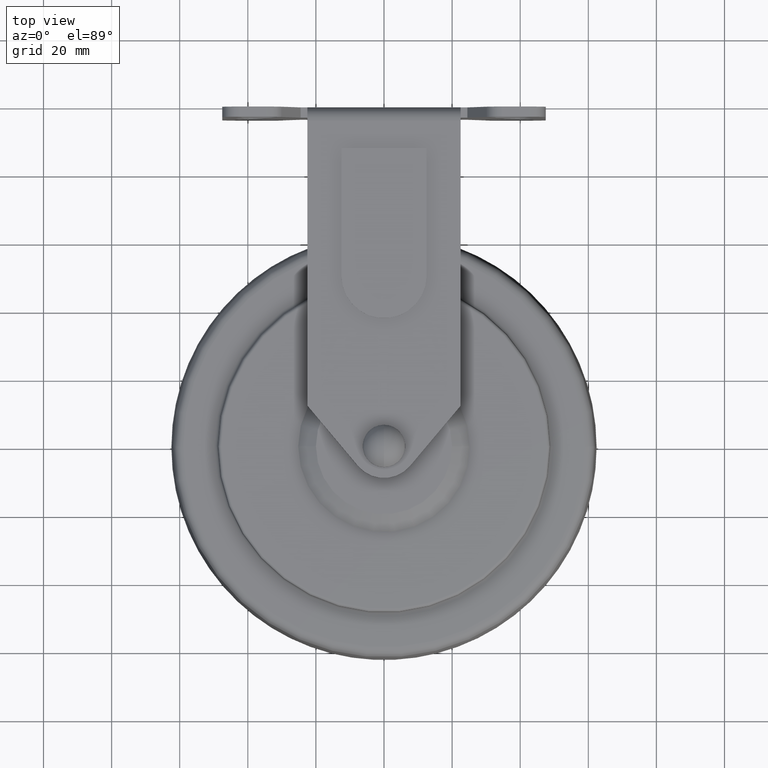
[diagram: clean part render]
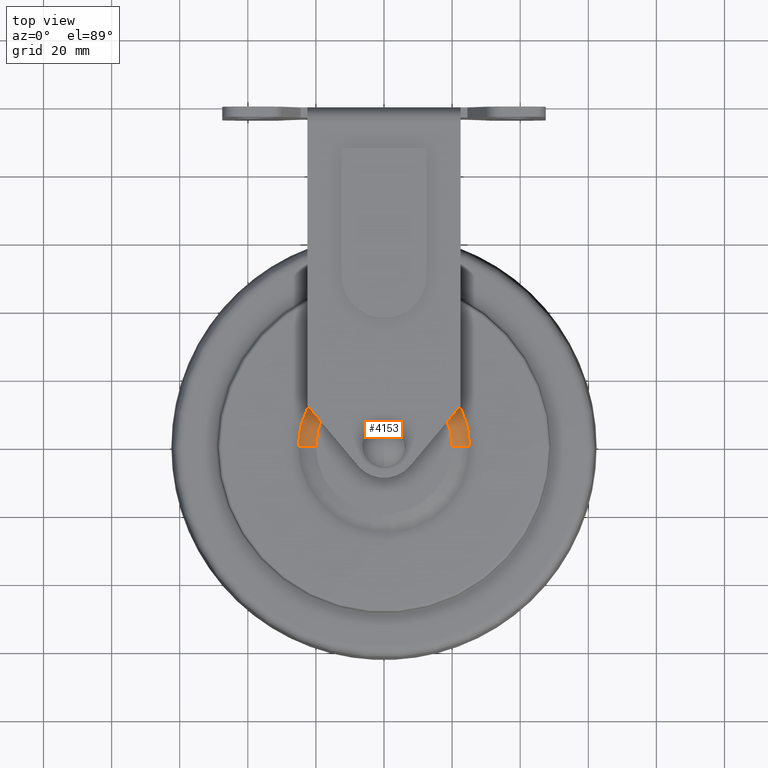
[diagram: same view with one face highlighted and labeled with its STEP entity id]
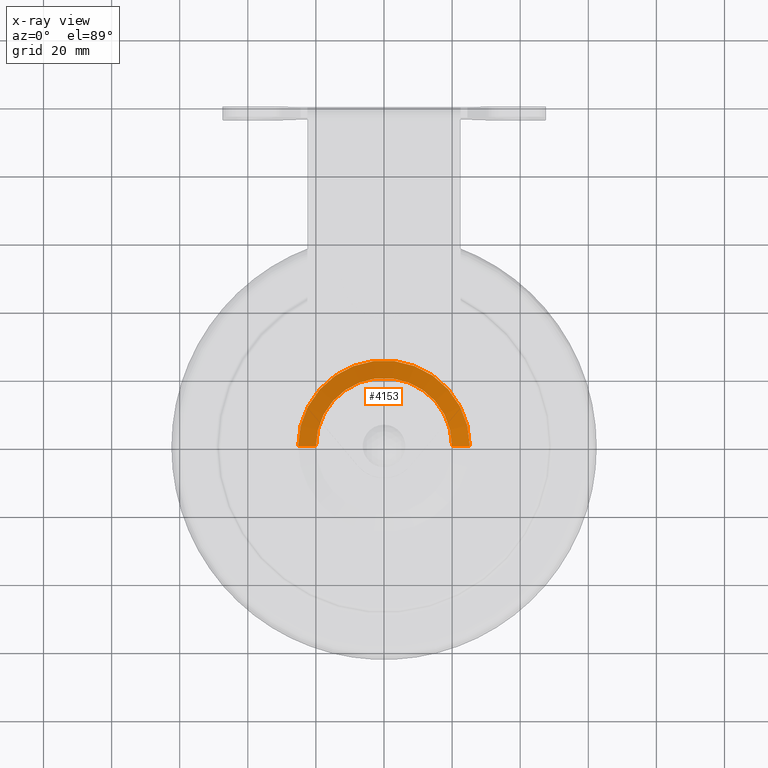
[diagram: x-ray of the same camera — body ghosted, the highlighted face saturated]
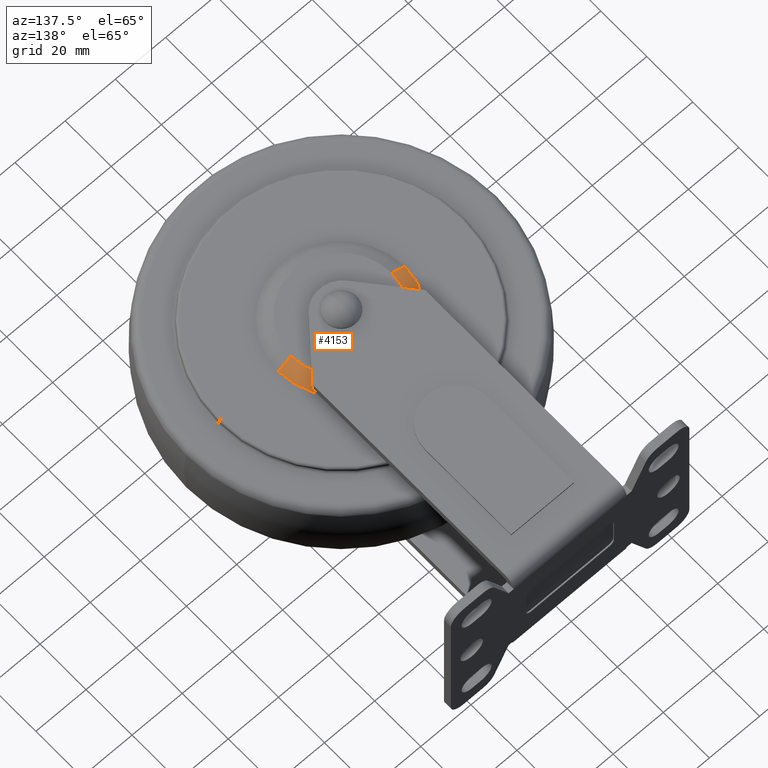
[diagram: same view with one face highlighted and labeled with its STEP entity id]
A machine part, top view. The second image highlights one B-rep face of the part: STEP entity #4153.
The next image is the same camera in x-ray: the body ghosted, the highlighted face saturated — about 0% of this face is hidden behind the body in this view.
A second angle (auxiliary view) of the same face is appended — the face is thin or edge-on in the first view.
In plain terms, the highlighted conical surface has half-angle 60 deg.
Its self-contained STEP definition (entity closure, byte-faithful):
#221 = EDGE_CURVE ( 'NONE', #777, #3305, #2217, .T. ) ;
#561 = AXIS2_PLACEMENT_3D ( 'NONE', #1424, #4422, #1402 ) ;
#581 = VECTOR ( 'NONE', #2565, 1000.000000000000000 ) ;
#587 = AXIS2_PLACEMENT_3D ( 'NONE', #4092, #2227, #2558 ) ;
#603 = CARTESIAN_POINT ( 'NONE',  ( 20.00000000000000000, 2.767466169912177577E-15, 19.00000000000000000 ) ) ;
#632 = CARTESIAN_POINT ( 'NONE',  ( 25.19615242270661426, 3.085638741529648640E-15, 16.00000000000000355 ) ) ;
#684 = EDGE_LOOP ( 'NONE', ( #3916, #1917, #3756, #2717 ) ) ;
#776 = DIRECTION ( 'NONE',  ( 0.8660254037844382635, 1.060575238724906422E-16, -0.5000000000000006661 ) ) ;
#777 = VERTEX_POINT ( 'NONE', #2918 ) ;
#894 = CIRCLE ( 'NONE', #587, 25.19615242270661426 ) ;
#1000 = VERTEX_POINT ( 'NONE', #2730 ) ;
#1059 = CARTESIAN_POINT ( 'NONE',  ( -25.19615242270661426, 0.000000000000000000, 16.00000000000000355 ) ) ;
#1108 = DIRECTION ( 'NONE',  ( -0.000000000000000000, -0.000000000000000000, -1.000000000000000000 ) ) ;
#1248 = VERTEX_POINT ( 'NONE', #632 ) ;
#1402 = DIRECTION ( 'NONE',  ( -1.000000000000000000, 0.000000000000000000, 0.000000000000000000 ) ) ;
#1424 = CARTESIAN_POINT ( 'NONE',  ( 0.000000000000000000, 0.000000000000000000, 19.00000000000000000 ) ) ;
#1867 = CARTESIAN_POINT ( 'NONE',  ( 25.19615242270661426, 3.085638741529648640E-15, 16.00000000000000355 ) ) ;
#1917 = ORIENTED_EDGE ( 'NONE', *, *, #4254, .T. ) ;
#2217 = CIRCLE ( 'NONE', #561, 20.00000000000000000 ) ;
#2227 = DIRECTION ( 'NONE',  ( -0.000000000000000000, -0.000000000000000000, -1.000000000000000000 ) ) ;
#2558 = DIRECTION ( 'NONE',  ( -1.000000000000000000, 0.000000000000000000, 0.000000000000000000 ) ) ;
#2565 = DIRECTION ( 'NONE',  ( -0.8660254037844382635, 0.000000000000000000, -0.5000000000000006661 ) ) ;
#2610 = CARTESIAN_POINT ( 'NONE',  ( 0.000000000000000000, 0.000000000000000000, 16.00000000000000355 ) ) ;
#2679 = AXIS2_PLACEMENT_3D ( 'NONE', #2610, #1108, #4889 ) ;
#2717 = ORIENTED_EDGE ( 'NONE', *, *, #3028, .F. ) ;
#2730 = CARTESIAN_POINT ( 'NONE',  ( -25.19615242270661426, 0.000000000000000000, 16.00000000000000355 ) ) ;
#2918 = CARTESIAN_POINT ( 'NONE',  ( -20.00000000000000000, 0.000000000000000000, 19.00000000000000000 ) ) ;
#3001 = CONICAL_SURFACE ( 'NONE', #2679, 25.19615242270661426, 1.047197551196596965 ) ;
#3028 = EDGE_CURVE ( 'NONE', #777, #1000, #3701, .T. ) ;
#3305 = VERTEX_POINT ( 'NONE', #603 ) ;
#3334 = LINE ( 'NONE', #1867, #3390 ) ;
#3390 = VECTOR ( 'NONE', #776, 1000.000000000000000 ) ;
#3465 = EDGE_CURVE ( 'NONE', #1000, #1248, #894, .T. ) ;
#3701 = LINE ( 'NONE', #1059, #581 ) ;
#3727 = FACE_OUTER_BOUND ( 'NONE', #684, .T. ) ;
#3756 = ORIENTED_EDGE ( 'NONE', *, *, #3465, .F. ) ;
#3916 = ORIENTED_EDGE ( 'NONE', *, *, #221, .T. ) ;
#4092 = CARTESIAN_POINT ( 'NONE',  ( 0.000000000000000000, 0.000000000000000000, 16.00000000000000355 ) ) ;
#4153 = ADVANCED_FACE ( 'NONE', ( #3727 ), #3001, .T. ) ;
#4254 = EDGE_CURVE ( 'NONE', #3305, #1248, #3334, .T. ) ;
#4422 = DIRECTION ( 'NONE',  ( -0.000000000000000000, -0.000000000000000000, -1.000000000000000000 ) ) ;
#4889 = DIRECTION ( 'NONE',  ( -1.000000000000000000, 0.000000000000000000, 0.000000000000000000 ) ) ;